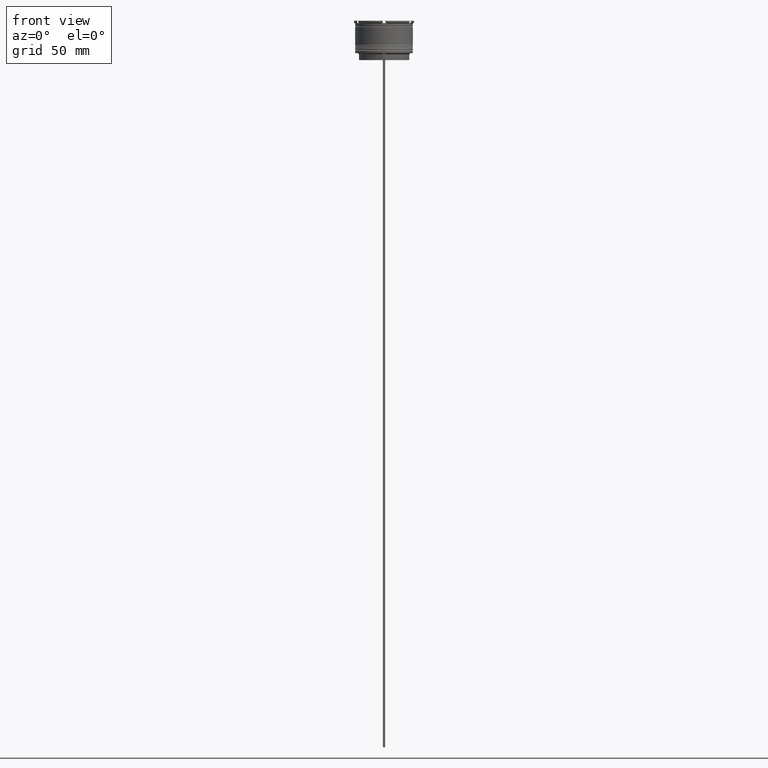
[diagram: clean part render]
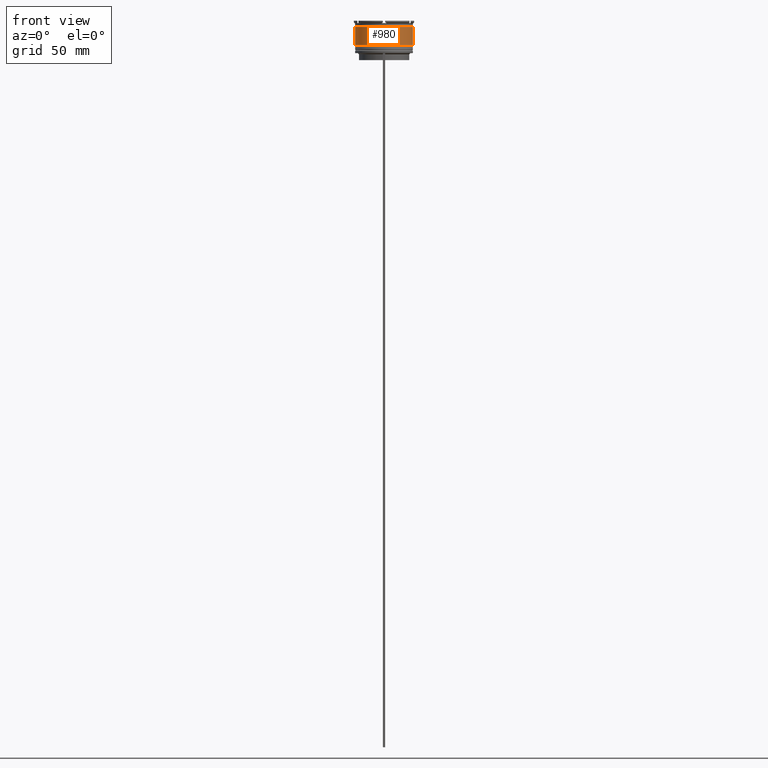
[diagram: same view with one face highlighted and labeled with its STEP entity id]
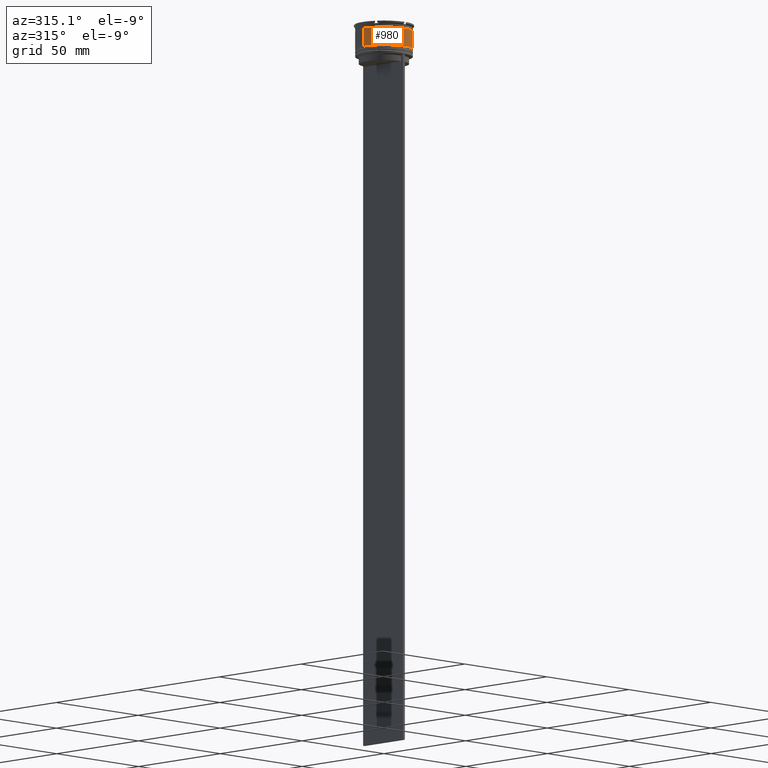
[diagram: same view with one face highlighted and labeled with its STEP entity id]
A machine part, front view. The second image highlights one B-rep face of the part: STEP entity #980.
A second angle (auxiliary view) of the same face is appended — the face is thin or edge-on in the first view.
In plain terms, the highlighted cylindrical surface (edge-blend (fillet) strip) has radius 12.5 mm, axis along (-0, -0, 1).
Its self-contained STEP definition (entity closure, byte-faithful):
#4 = AXIS2_PLACEMENT_3D ( 'NONE', #941, #2647, #728 ) ;
#41 = LINE ( 'NONE', #703, #1951 ) ;
#102 = EDGE_LOOP ( 'NONE', ( #1908, #1419, #1550, #932 ) ) ;
#132 = LINE ( 'NONE', #2244, #1403 ) ;
#145 = AXIS2_PLACEMENT_3D ( 'NONE', #1199, #514, #1158 ) ;
#514 = DIRECTION ( 'NONE',  ( -0.000000000000000000, -0.000000000000000000, 1.000000000000000000 ) ) ;
#572 = VERTEX_POINT ( 'NONE', #1011 ) ;
#669 = DIRECTION ( 'NONE',  ( -0.000000000000000000, -0.000000000000000000, 1.000000000000000000 ) ) ;
#703 = CARTESIAN_POINT ( 'NONE',  ( 12.50000000000000000, 0.000000000000000000, 0.000000000000000000 ) ) ;
#708 = VERTEX_POINT ( 'NONE', #900 ) ;
#728 = DIRECTION ( 'NONE',  ( 1.000000000000000000, 0.000000000000000000, 0.000000000000000000 ) ) ;
#900 = CARTESIAN_POINT ( 'NONE',  ( 12.50000000000000178, 0.000000000000000000, -10.50000000000000178 ) ) ;
#926 = VERTEX_POINT ( 'NONE', #1261 ) ;
#932 = ORIENTED_EDGE ( 'NONE', *, *, #1685, .F. ) ;
#941 = CARTESIAN_POINT ( 'NONE',  ( 0.000000000000000000, 0.000000000000000000, -10.50000000000000178 ) ) ;
#980 = ADVANCED_FACE ( 'NONE', ( #2548 ), #2369, .T. ) ;
#992 = VERTEX_POINT ( 'NONE', #1279 ) ;
#1011 = CARTESIAN_POINT ( 'NONE',  ( -12.49999999999999822, 1.530808498934191324E-15, -2.699999999999999289 ) ) ;
#1158 = DIRECTION ( 'NONE',  ( 1.000000000000000000, 0.000000000000000000, 0.000000000000000000 ) ) ;
#1199 = CARTESIAN_POINT ( 'NONE',  ( 0.000000000000000000, 0.000000000000000000, -2.699999999999999289 ) ) ;
#1217 = EDGE_CURVE ( 'NONE', #926, #572, #132, .T. ) ;
#1261 = CARTESIAN_POINT ( 'NONE',  ( -12.50000000000000355, 1.530808498934191916E-15, -10.50000000000000178 ) ) ;
#1279 = CARTESIAN_POINT ( 'NONE',  ( 12.49999999999999822, 0.000000000000000000, -2.699999999999999289 ) ) ;
#1361 = CIRCLE ( 'NONE', #145, 12.49999999999999822 ) ;
#1403 = VECTOR ( 'NONE', #1426, 1000.000000000000000 ) ;
#1419 = ORIENTED_EDGE ( 'NONE', *, *, #2180, .T. ) ;
#1426 = DIRECTION ( 'NONE',  ( -0.000000000000000000, -0.000000000000000000, 1.000000000000000000 ) ) ;
#1516 = DIRECTION ( 'NONE',  ( -0.000000000000000000, -0.000000000000000000, 1.000000000000000000 ) ) ;
#1550 = ORIENTED_EDGE ( 'NONE', *, *, #2372, .T. ) ;
#1685 = EDGE_CURVE ( 'NONE', #572, #992, #1361, .T. ) ;
#1754 = AXIS2_PLACEMENT_3D ( 'NONE', #2779, #669, #2314 ) ;
#1908 = ORIENTED_EDGE ( 'NONE', *, *, #1217, .F. ) ;
#1951 = VECTOR ( 'NONE', #1516, 1000.000000000000000 ) ;
#2180 = EDGE_CURVE ( 'NONE', #926, #708, #2306, .T. ) ;
#2244 = CARTESIAN_POINT ( 'NONE',  ( -12.50000000000000000, 1.530808498934191521E-15, 0.000000000000000000 ) ) ;
#2306 = CIRCLE ( 'NONE', #4, 12.50000000000000178 ) ;
#2314 = DIRECTION ( 'NONE',  ( 1.000000000000000000, 0.000000000000000000, 0.000000000000000000 ) ) ;
#2369 = CYLINDRICAL_SURFACE ( 'NONE', #1754, 12.50000000000000000 ) ;
#2372 = EDGE_CURVE ( 'NONE', #708, #992, #41, .T. ) ;
#2548 = FACE_OUTER_BOUND ( 'NONE', #102, .T. ) ;
#2647 = DIRECTION ( 'NONE',  ( -0.000000000000000000, -0.000000000000000000, 1.000000000000000000 ) ) ;
#2779 = CARTESIAN_POINT ( 'NONE',  ( 0.000000000000000000, 0.000000000000000000, 0.000000000000000000 ) ) ;